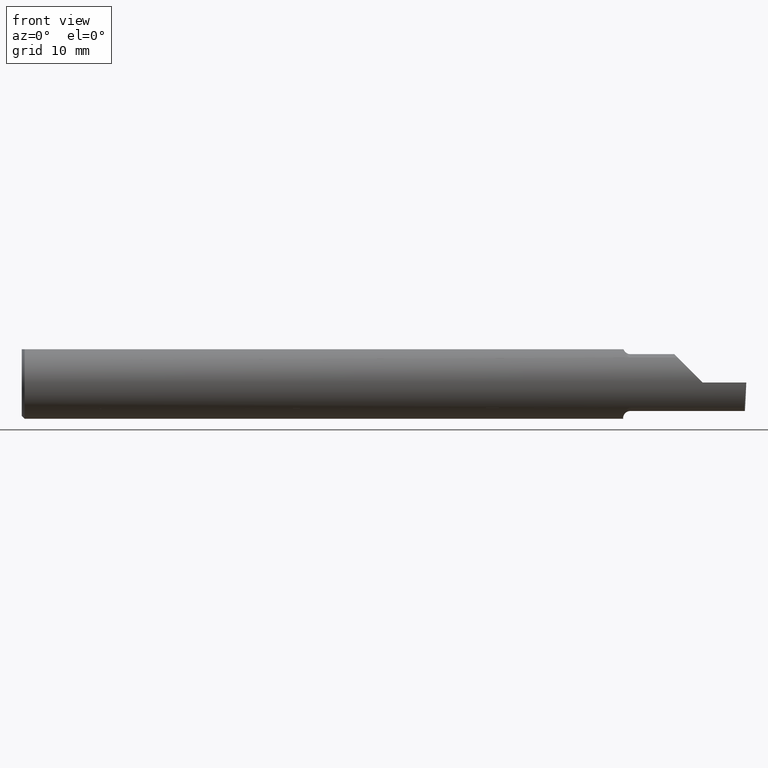
[diagram: clean part render]
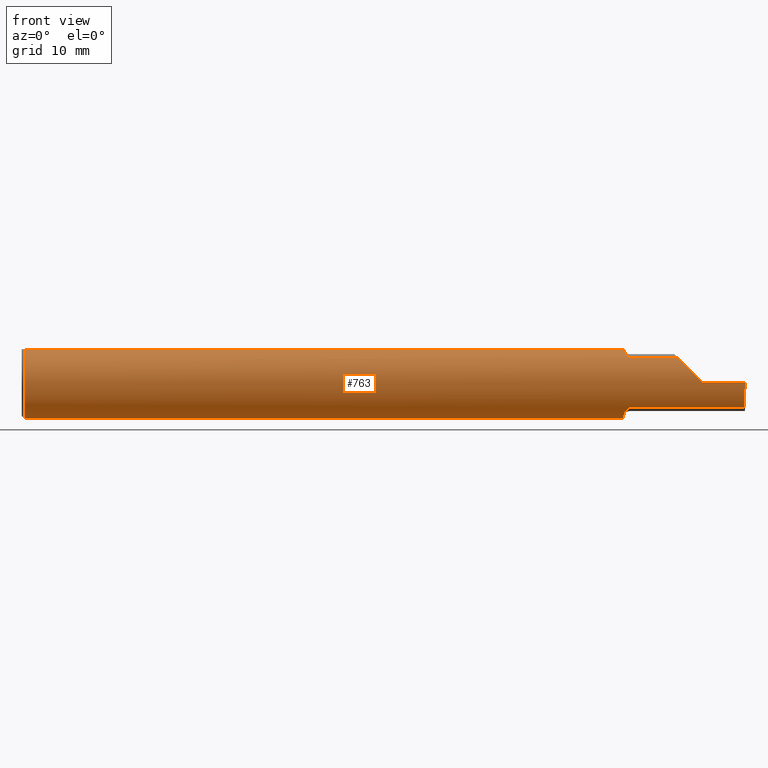
[diagram: same view with one face highlighted and labeled with its STEP entity id]
A machine part, front view. The second image highlights one B-rep face of the part: STEP entity #763.
In plain terms, the highlighted cylindrical surface (edge-blend (fillet) strip) has radius 3.175 mm, axis along (-1, -0, -0).
Its self-contained STEP definition (entity closure, byte-faithful):
#8 = CARTESIAN_POINT ( 'NONE',  ( 0.01000000000000042348, 0.04898979485566374442, 0.1149999999999999217 ) ) ;
#10 = CIRCLE ( 'NONE', #514, 0.1250000000000000000 ) ;
#17 =( BOUNDED_CURVE ( )  B_SPLINE_CURVE ( 3, ( #279, #786, #618, #669 ),
 .UNSPECIFIED., .F., .T. ) 
 B_SPLINE_CURVE_WITH_KNOTS ( ( 4, 4 ),
 ( 4.712388980384689674, 5.474523801125206646 ),
 .UNSPECIFIED. ) 
 CURVE ( )  GEOMETRIC_REPRESENTATION_ITEM ( )  RATIONAL_B_SPLINE_CURVE ( ( 1.000000000000000000, 0.9521787881681383903, 0.9521787881681383903, 1.000000000000000000 ) ) 
 REPRESENTATION_ITEM ( '' )  );
#29 = DIRECTION ( 'NONE',  ( 0.000000000000000000, 0.000000000000000000, -1.000000000000000000 ) ) ;
#31 = DIRECTION ( 'NONE',  ( -1.000000000000000000, -0.000000000000000000, -0.000000000000000000 ) ) ;
#43 = DIRECTION ( 'NONE',  ( -1.000000000000000000, -0.000000000000000000, -0.000000000000000000 ) ) ;
#47 = CARTESIAN_POINT ( 'NONE',  ( 2.090850385411617385, -0.08673035960621020002, -0.09003514189954212044 ) ) ;
#48 = CARTESIAN_POINT ( 'NONE',  ( 2.075000000000000178, -0.02763636363636362211, -0.1219066503721543265 ) ) ;
#59 = CARTESIAN_POINT ( 'NONE',  ( 2.089282510427138195, -0.08510692115743005715, -0.09158169095606863430 ) ) ;
#64 = CIRCLE ( 'NONE', #429, 0.1250000000000000000 ) ;
#74 = CARTESIAN_POINT ( 'NONE',  ( 2.075000000000000178, 0.04898979485566374442, 0.1149999999999999217 ) ) ;
#75 = VERTEX_POINT ( 'NONE', #673 ) ;
#77 = EDGE_CURVE ( 'NONE', #620, #597, #107, .T. ) ;
#80 = ORIENTED_EDGE ( 'NONE', *, *, #347, .F. ) ;
#91 = ORIENTED_EDGE ( 'NONE', *, *, #693, .F. ) ;
#107 = LINE ( 'NONE', #487, #771 ) ;
#116 = EDGE_CURVE ( 'NONE', #270, #708, #360, .T. ) ;
#124 = CARTESIAN_POINT ( 'NONE',  ( 2.493976598891079810, -0.1128945894460737925, -0.06276352435079116110 ) ) ;
#126 = EDGE_CURVE ( 'NONE', #708, #75, #714, .T. ) ;
#129 = CARTESIAN_POINT ( 'NONE',  ( 2.075234743326752174, -0.03866586649758528560, -0.1190059989239850985 ) ) ;
#130 = VECTOR ( 'NONE', #527, 39.37007874015748143 ) ;
#140 = LINE ( 'NONE', #711, #130 ) ;
#149 = VERTEX_POINT ( 'NONE', #375 ) ;
#166 = DIRECTION ( 'NONE',  ( 1.000000000000000000, 0.000000000000000000, 0.000000000000000000 ) ) ;
#168 = CARTESIAN_POINT ( 'NONE',  ( 2.100000000000000089, -0.09042045454545434569, -0.08630840862739518060 ) ) ;
#171 = CARTESIAN_POINT ( 'NONE',  ( 2.080023755285531184, -0.06757875350159907313, -0.1052824340695055344 ) ) ;
#178 = ORIENTED_EDGE ( 'NONE', *, *, #282, .F. ) ;
#182 = EDGE_CURVE ( 'NONE', #597, #533, #17, .T. ) ;
#184 = CARTESIAN_POINT ( 'NONE',  ( 2.091446811421614704, -0.08721672169480992887, 0.08955973280240364653 ) ) ;
#200 = CARTESIAN_POINT ( 'NONE',  ( 2.100000000000000089, -0.09042045454545434569, 0.08630840862739518060 ) ) ;
#205 = ORIENTED_EDGE ( 'NONE', *, *, #504, .F. ) ;
#207 = CARTESIAN_POINT ( 'NONE',  ( 2.075000000000000178, -0.02763636363636362211, -0.1219066503721543265 ) ) ;
#239 = CARTESIAN_POINT ( 'NONE',  ( 2.075730677800976753, -0.04400000000000003908, -0.1169999999999999929 ) ) ;
#255 = EDGE_CURVE ( 'NONE', #288, #505, #64, .T. ) ;
#270 = VERTEX_POINT ( 'NONE', #481 ) ;
#271 = DIRECTION ( 'NONE',  ( 1.000000000000000000, 0.000000000000000000, 0.000000000000000000 ) ) ;
#279 = CARTESIAN_POINT ( 'NONE',  ( 2.350000000000000089, -0.1250000000000000278, 1.836970198721028825E-17 ) ) ;
#281 = CARTESIAN_POINT ( 'NONE',  ( 2.094768270659623788, -0.08937924045984939336, -0.08740614068309870976 ) ) ;
#282 = EDGE_CURVE ( 'NONE', #602, #520, #10, .T. ) ;
#283 = ORIENTED_EDGE ( 'NONE', *, *, #310, .T. ) ;
#288 = VERTEX_POINT ( 'NONE', #684 ) ;
#290 = DIRECTION ( 'NONE',  ( -1.000000000000000000, -0.000000000000000000, -0.000000000000000000 ) ) ;
#292 = ORIENTED_EDGE ( 'NONE', *, *, #77, .T. ) ;
#295 = CARTESIAN_POINT ( 'NONE',  ( 2.078809610961340315, -0.06315583524588902486, -0.1079992965090798424 ) ) ;
#299 = CARTESIAN_POINT ( 'NONE',  ( 2.089945076695560289, -0.08578123596784995031, 0.09094459933477699876 ) ) ;
#303 = VECTOR ( 'NONE', #31, 39.37007874015748143 ) ;
#309 = CARTESIAN_POINT ( 'NONE',  ( 2.076278290187155484, -0.04898979485567048209, 0.1149999999999999217 ) ) ;
#310 = EDGE_CURVE ( 'NONE', #270, #620, #722, .T. ) ;
#315 = VECTOR ( 'NONE', #43, 39.37007874015748143 ) ;
#325 = CARTESIAN_POINT ( 'NONE',  ( 0.01000000000000042348, -0.04898979485566374442, 0.1149999999999999217 ) ) ;
#332 = CARTESIAN_POINT ( 'NONE',  ( 0.000000000000000000, 0.04898979485566374442, 0.1149999999999999217 ) ) ;
#337 = B_SPLINE_CURVE_WITH_KNOTS ( 'NONE', 3,
 ( #309, #428, #749, #687, #500, #299, #184, #699, #815, #624 ),
 .UNSPECIFIED., .F., .F.,
 ( 4, 2, 2, 2, 4 ),
 ( 5.067393987362344038E-07, 0.0007430328995925329768, 0.001114295979689431315, 0.001299927519737886176, 0.001485559059786341254 ),
 .UNSPECIFIED. ) ;
#341 = CARTESIAN_POINT ( 'NONE',  ( 0.01000000000000042348, 0.000000000000000000, 0.000000000000000000 ) ) ;
#347 = EDGE_CURVE ( 'NONE', #149, #539, #337, .T. ) ;
#355 = CARTESIAN_POINT ( 'NONE',  ( 2.075730677800976753, -0.04400000000000003908, -0.1169999999999999929 ) ) ;
#360 = LINE ( 'NONE', #479, #315 ) ;
#361 = CARTESIAN_POINT ( 'NONE',  ( 2.494820567471968786, -0.1250000000000000000, -0.03254916765648421112 ) ) ;
#375 = CARTESIAN_POINT ( 'NONE',  ( 2.076278290187155484, -0.04898979485567048209, 0.1149999999999999217 ) ) ;
#386 = DIRECTION ( 'NONE',  ( 1.000000000000000000, 0.000000000000000000, 0.000000000000000000 ) ) ;
#391 = LINE ( 'NONE', #332, #303 ) ;
#394 = CARTESIAN_POINT ( 'NONE',  ( 0.000000000000000000, 0.000000000000000000, 0.000000000000000000 ) ) ;
#405 = ORIENTED_EDGE ( 'NONE', *, *, #182, .T. ) ;
#419 = CARTESIAN_POINT ( 'NONE',  ( 2.097250989814109179, -0.09042045454545435956, -0.08630840862739519448 ) ) ;
#421 = CARTESIAN_POINT ( 'NONE',  ( 2.076893175330811303, -0.05388688644707111119, -0.1129101901561701121 ) ) ;
#428 = CARTESIAN_POINT ( 'NONE',  ( 2.077426556614195174, -0.05801934803234089916, 0.1111534264542279604 ) ) ;
#429 = AXIS2_PLACEMENT_3D ( 'NONE', #736, #166, #739 ) ;
#438 = CIRCLE ( 'NONE', #606, 0.1250000000000000000 ) ;
#455 = CYLINDRICAL_SURFACE ( 'NONE', #502, 0.1250000000000000000 ) ;
#457 = EDGE_CURVE ( 'NONE', #75, #602, #482, .T. ) ;
#466 = ORIENTED_EDGE ( 'NONE', *, *, #560, .F. ) ;
#475 = DIRECTION ( 'NONE',  ( 0.000000000000000000, 0.000000000000000000, -1.000000000000000000 ) ) ;
#479 = CARTESIAN_POINT ( 'NONE',  ( 2.284734615000000080, -0.09042045454545437344, -0.08630840862739515285 ) ) ;
#481 = CARTESIAN_POINT ( 'NONE',  ( 2.493546555653489705, -0.09042045454545437344, -0.08630840862739515285 ) ) ;
#482 = B_SPLINE_CURVE_WITH_KNOTS ( 'NONE', 3,
 ( #239, #129, #616, #48 ),
 .UNSPECIFIED., .F., .F.,
 ( 4, 4 ),
 ( 0.001645996930207816204, 0.002084692492981597353 ),
 .UNSPECIFIED. ) ;
#487 = CARTESIAN_POINT ( 'NONE',  ( 3.749399456654637998E-32, -0.1249999999999999861, 3.061616997868380183E-16 ) ) ;
#490 = ORIENTED_EDGE ( 'NONE', *, *, #126, .F. ) ;
#500 = CARTESIAN_POINT ( 'NONE',  ( 2.085996102358258053, -0.08116363444210958344, 0.09515685373890780951 ) ) ;
#502 = AXIS2_PLACEMENT_3D ( 'NONE', #394, #796, #668 ) ;
#504 = EDGE_CURVE ( 'NONE', #539, #533, #140, .T. ) ;
#505 = VERTEX_POINT ( 'NONE', #8 ) ;
#512 = CARTESIAN_POINT ( 'NONE',  ( 2.493546555653489705, -0.09042045454545437344, -0.08630840862739515285 ) ) ;
#514 = AXIS2_PLACEMENT_3D ( 'NONE', #595, #557, #29 ) ;
#516 = CARTESIAN_POINT ( 'NONE',  ( 2.263691591372603895, -0.09042045454545441507, 0.08630840862739512509 ) ) ;
#520 = VERTEX_POINT ( 'NONE', #74 ) ;
#527 = DIRECTION ( 'NONE',  ( 1.000000000000000000, 0.000000000000000000, 0.000000000000000000 ) ) ;
#528 = VECTOR ( 'NONE', #386, 39.37007874015748143 ) ;
#533 = VERTEX_POINT ( 'NONE', #516 ) ;
#535 = ORIENTED_EDGE ( 'NONE', *, *, #791, .T. ) ;
#539 = VERTEX_POINT ( 'NONE', #200 ) ;
#549 = ORIENTED_EDGE ( 'NONE', *, *, #255, .T. ) ;
#553 = CARTESIAN_POINT ( 'NONE',  ( 2.083239374200247518, -0.07597265459956462075, -0.09939534496909263606 ) ) ;
#557 = DIRECTION ( 'NONE',  ( 1.000000000000000000, 0.000000000000000000, 0.000000000000000000 ) ) ;
#560 = EDGE_CURVE ( 'NONE', #760, #149, #586, .T. ) ;
#570 = CARTESIAN_POINT ( 'NONE',  ( 2.495957382595297869, -0.1250000000000000000, 0.000000000000000000 ) ) ;
#586 = LINE ( 'NONE', #702, #528 ) ;
#590 = FACE_OUTER_BOUND ( 'NONE', #788, .T. ) ;
#595 = CARTESIAN_POINT ( 'NONE',  ( 2.075000000000000178, 0.000000000000000000, 0.000000000000000000 ) ) ;
#597 = VERTEX_POINT ( 'NONE', #783 ) ;
#602 = VERTEX_POINT ( 'NONE', #207 ) ;
#606 = AXIS2_PLACEMENT_3D ( 'NONE', #341, #271, #475 ) ;
#616 = CARTESIAN_POINT ( 'NONE',  ( 2.075000000000000178, -0.03321131449419133241, -0.1206428032506770415 ) ) ;
#618 = CARTESIAN_POINT ( 'NONE',  ( 2.287236475649208067, -0.1128945894460738203, 0.06276352435079109171 ) ) ;
#619 = ORIENTED_EDGE ( 'NONE', *, *, #116, .F. ) ;
#620 = VERTEX_POINT ( 'NONE', #654 ) ;
#624 = CARTESIAN_POINT ( 'NONE',  ( 2.100000000000000089, -0.09042045454545434569, 0.08630840862739518060 ) ) ;
#654 = CARTESIAN_POINT ( 'NONE',  ( 2.495957382595297869, -0.1250000000000000000, 0.000000000000000000 ) ) ;
#668 = DIRECTION ( 'NONE',  ( 0.000000000000000000, 0.000000000000000000, 1.000000000000000000 ) ) ;
#669 = CARTESIAN_POINT ( 'NONE',  ( 2.263691591372603895, -0.09042045454545441507, 0.08630840862739512509 ) ) ;
#673 = CARTESIAN_POINT ( 'NONE',  ( 2.075730677800976753, -0.04400000000000003908, -0.1169999999999999929 ) ) ;
#682 = CARTESIAN_POINT ( 'NONE',  ( 2.076195811990450668, -0.04900285419228612299, -0.1151185847482000674 ) ) ;
#684 = CARTESIAN_POINT ( 'NONE',  ( 0.01000000000000042348, 0.000000000000000000, -0.1250000000000000000 ) ) ;
#687 = CARTESIAN_POINT ( 'NONE',  ( 2.084055883886254179, -0.07758562614456451789, 0.09811804109484031922 ) ) ;
#693 = EDGE_CURVE ( 'NONE', #520, #505, #391, .T. ) ;
#699 = CARTESIAN_POINT ( 'NONE',  ( 2.095169762358927379, -0.08954173371313513263, 0.08723520050113869884 ) ) ;
#702 = CARTESIAN_POINT ( 'NONE',  ( 0.000000000000000000, -0.04898979485566374442, 0.1149999999999999217 ) ) ;
#707 = ORIENTED_EDGE ( 'NONE', *, *, #457, .F. ) ;
#708 = VERTEX_POINT ( 'NONE', #727 ) ;
#711 = CARTESIAN_POINT ( 'NONE',  ( 2.284734615000000080, -0.09042045454545437344, 0.08630840862739515285 ) ) ;
#714 = B_SPLINE_CURVE_WITH_KNOTS ( 'NONE', 3,
 ( #168, #419, #281, #47, #59, #734, #553, #171, #295, #421, #682, #355 ),
 .UNSPECIFIED., .F., .F.,
 ( 4, 2, 2, 2, 2, 4 ),
 ( 1.964009442425878223E-07, 0.0002059214671021932918, 0.0004116465332601439912, 0.0008230966655760347649, 0.001234546797891925268, 0.001645996930207816204 ),
 .UNSPECIFIED. ) ;
#722 =( BOUNDED_CURVE ( )  B_SPLINE_CURVE ( 3, ( #512, #124, #361, #570 ),
 .UNSPECIFIED., .F., .T. ) 
 B_SPLINE_CURVE_WITH_KNOTS ( ( 4, 4 ),
 ( 0.3451966888490363705, 1.107331509589553287 ),
 .UNSPECIFIED. ) 
 CURVE ( )  GEOMETRIC_REPRESENTATION_ITEM ( )  RATIONAL_B_SPLINE_CURVE ( ( 1.000000000000000000, 0.9521787881681383903, 0.9521787881681383903, 1.000000000000000000 ) ) 
 REPRESENTATION_ITEM ( '' )  );
#727 = CARTESIAN_POINT ( 'NONE',  ( 2.100000000000000089, -0.09042045454545434569, -0.08630840862739518060 ) ) ;
#734 = CARTESIAN_POINT ( 'NONE',  ( 2.085190181894029049, -0.07991573988362404846, -0.09622915934337322730 ) ) ;
#736 = CARTESIAN_POINT ( 'NONE',  ( 0.01000000000000042348, 0.000000000000000000, 0.000000000000000000 ) ) ;
#739 = DIRECTION ( 'NONE',  ( 0.000000000000000000, 0.000000000000000000, -1.000000000000000000 ) ) ;
#749 = CARTESIAN_POINT ( 'NONE',  ( 2.079267307214532678, -0.06631395538259703126, 0.1063681193386738499 ) ) ;
#760 = VERTEX_POINT ( 'NONE', #325 ) ;
#763 = ADVANCED_FACE ( 'NONE', ( #590 ), #455, .T. ) ;
#771 = VECTOR ( 'NONE', #290, 39.37007874015748143 ) ;
#783 = CARTESIAN_POINT ( 'NONE',  ( 2.350000000000000089, -0.1250000000000000278, 1.836970198721028825E-17 ) ) ;
#786 = CARTESIAN_POINT ( 'NONE',  ( 2.317450832343515899, -0.1250000000000000000, 0.03254916765648416949 ) ) ;
#788 = EDGE_LOOP ( 'NONE', ( #619, #283, #292, #405, #205, #80, #466, #535, #549, #91, #178, #707, #490 ) ) ;
#791 = EDGE_CURVE ( 'NONE', #760, #288, #438, .T. ) ;
#796 = DIRECTION ( 'NONE',  ( -1.000000000000000000, -0.000000000000000000, -0.000000000000000000 ) ) ;
#815 = CARTESIAN_POINT ( 'NONE',  ( 2.097488493957837541, -0.09042045454585202757, 0.08630840862697870819 ) ) ;